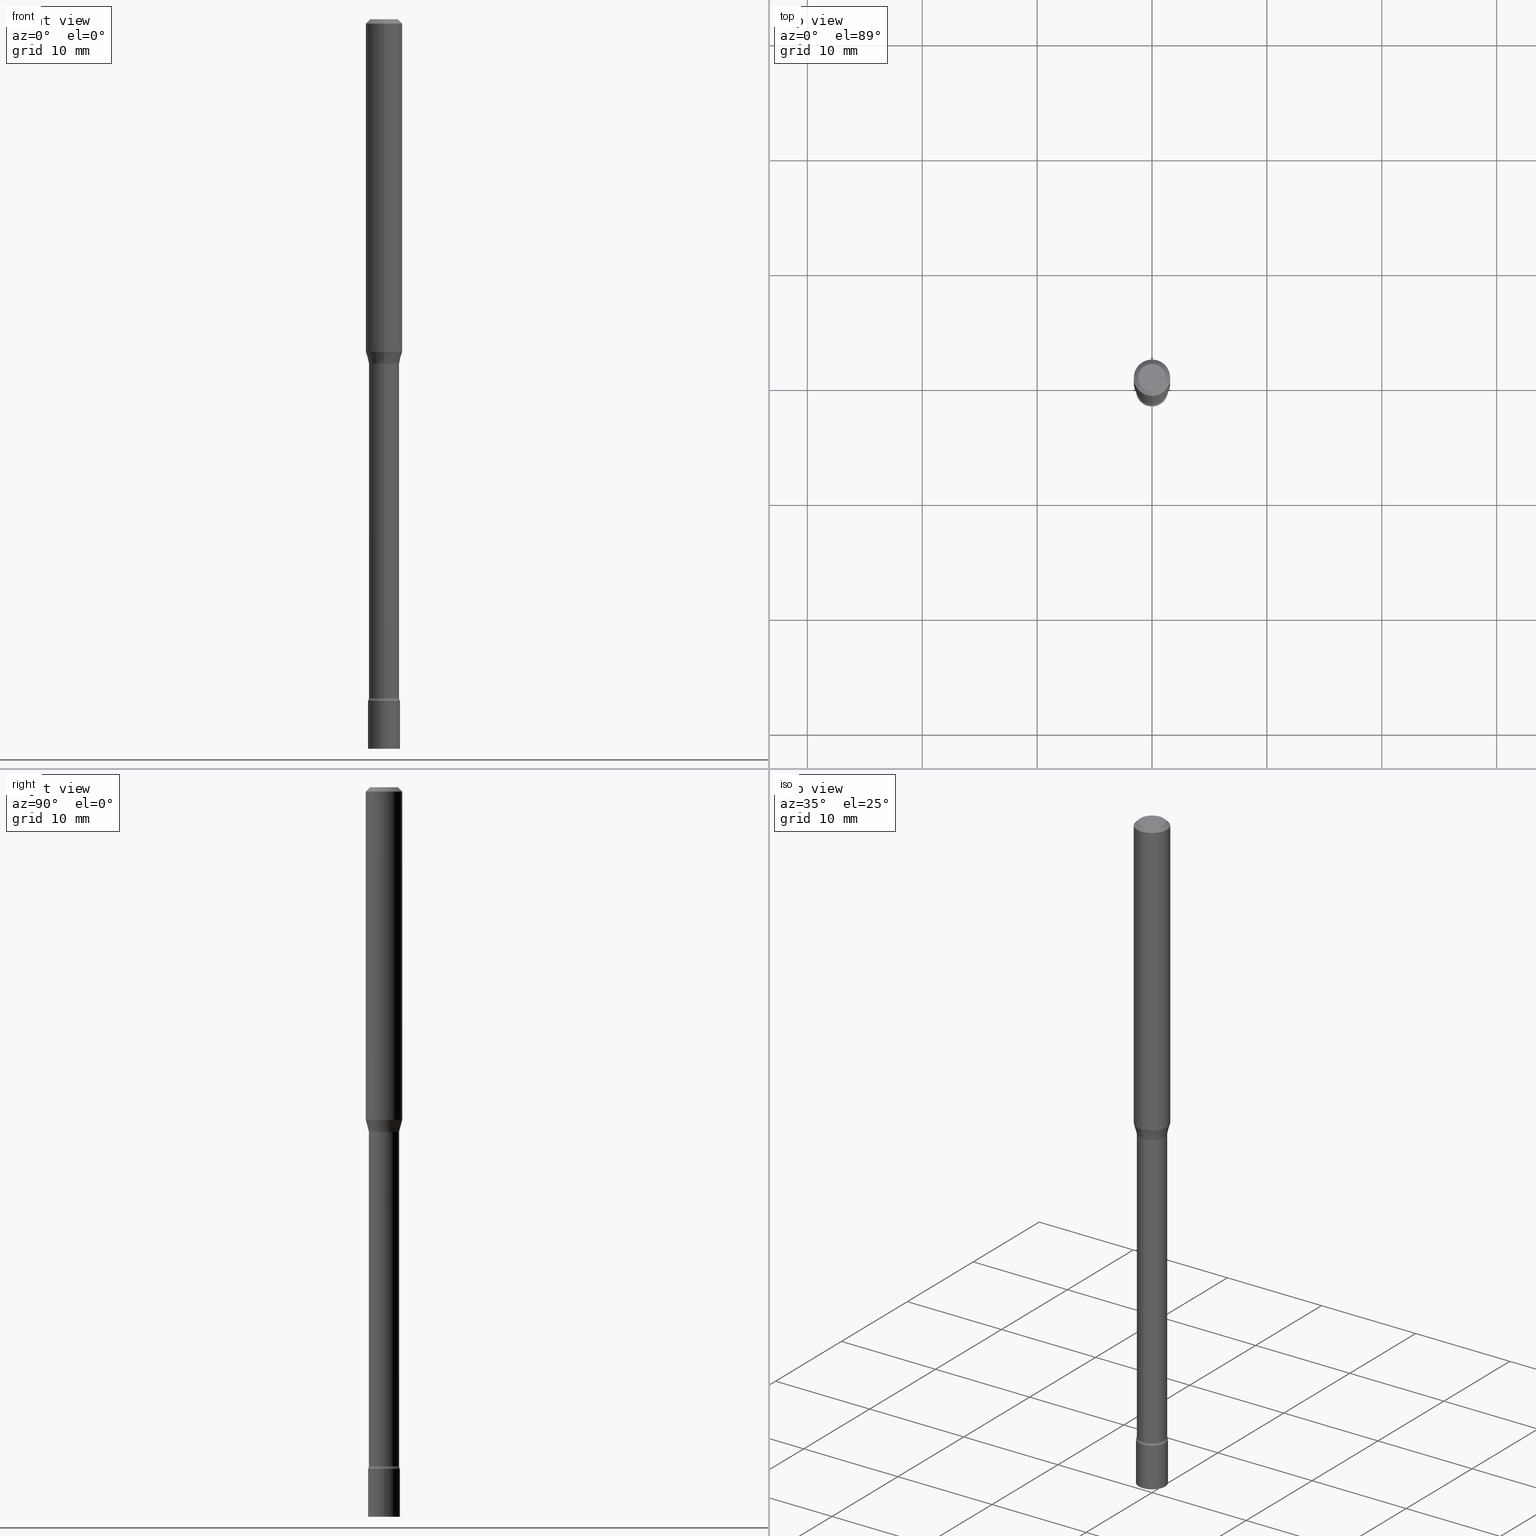
[diagram: canonical four-view strip — front | top / right | iso, engineering-drawing reading convention]
A machine part, canonical four-view strip (front | top / right | iso — engineering-drawing reading convention). The complete STEP part file that produces these views, byte-faithful:
ISO-10303-21;
HEADER;
FILE_DESCRIPTION (( 'STEP AP203' ),
    '1' );
FILE_NAME ('03613.STEP',
    '2024-03-08T22:07:00',
    ( '' ),
    ( '' ),
    'SwSTEP 2.0',
    'SolidWorks 2023',
    '' );
FILE_SCHEMA (( 'CONFIG_CONTROL_DESIGN' ));
ENDSEC;

DATA;
#1 = CARTESIAN_POINT ( 'NONE',  ( -4.364351673553916201E-16, -0.06250000000000000000, 2.182278962925272521E-16 ) ) ;
#2 = CC_DESIGN_APPROVAL ( #98, ( #320 ) ) ;
#3 = LINE ( 'NONE', #360, #441 ) ;
#4 = ORIENTED_EDGE ( 'NONE', *, *, #458, .F. ) ;
#5 = DIRECTION ( 'NONE',  ( 6.982962677686265922E-15, 1.000000000000000000, -3.483106191921935554E-15 ) ) ;
#6 = FACE_OUTER_BOUND ( 'NONE', #64, .T. ) ;
#7 = ADVANCED_FACE ( 'NONE', ( #298 ), #105, .T. ) ;
#8 = DIRECTION ( 'NONE',  ( -2.445468806185136597E-29, 3.491481338843145583E-15, 1.000000000000000000 ) ) ;
#9 = ADVANCED_FACE ( 'NONE', ( #376 ), #454, .T. ) ;
#10 = FACE_OUTER_BOUND ( 'NONE', #516, .T. ) ;
#11 = DIRECTION ( 'NONE',  ( -2.445353586017981575E-29, 3.491646340680436033E-15, 1.000000000000000000 ) ) ;
#12 =( NAMED_UNIT ( * ) SI_UNIT ( $, .STERADIAN. ) SOLID_ANGLE_UNIT ( ) );
#13 = AXIS2_PLACEMENT_3D ( 'NONE', #311, #11, #37 ) ;
#14 = CLOSED_SHELL ( 'NONE', ( #510, #176, #36, #241 ) ) ;
#15 = DIRECTION ( 'NONE',  ( -2.445353586017981575E-29, 3.491646340680436033E-15, 1.000000000000000000 ) ) ;
#16 = EDGE_CURVE ( 'NONE', #448, #474, #126, .T. ) ;
#17 = FACE_OUTER_BOUND ( 'NONE', #419, .T. ) ;
#18 = CARTESIAN_POINT ( 'NONE',  ( 5.709900623351987621E-29, -8.152994205488819247E-15, -2.334999999999999964 ) ) ;
#19 = CARTESIAN_POINT ( 'NONE',  ( 4.739320047520446740E-16, 0.06669999999999201568, -2.325613307291702903 ) ) ;
#20 = FACE_OUTER_BOUND ( 'NONE', #261, .T. ) ;
#21 = AXIS2_PLACEMENT_3D ( 'NONE', #307, #374, #497 ) ;
#22 = AXIS2_PLACEMENT_3D ( 'NONE', #435, #121, #227 ) ;
#23 = EDGE_CURVE ( 'NONE', #100, #318, #90, .T. ) ;
#24 = DIRECTION ( 'NONE',  ( 6.982962677686265922E-15, 1.000000000000000000, -3.491646340680436427E-15 ) ) ;
#25 = APPROVAL_DATE_TIME ( #341, #167 ) ;
#26 = VERTEX_POINT ( 'NONE', #134 ) ;
#27 = PERSON_AND_ORGANIZATION_ROLE ( 'design_supplier' ) ;
#28 = ORIENTED_EDGE ( 'NONE', *, *, #274, .T. ) ;
#29 = ADVANCED_FACE ( 'NONE', ( #213 ), #412, .T. ) ;
#30 = PERSON_AND_ORGANIZATION ( #378, #102 ) ;
#31 = ORIENTED_EDGE ( 'NONE', *, *, #426, .T. ) ;
#32 = CALENDAR_DATE ( 2024, 8, 3 ) ;
#33 = ORIENTED_EDGE ( 'NONE', *, *, #112, .T. ) ;
#34 = CIRCLE ( 'NONE', #439, 0.05221111260566397433 ) ;
#35 = AXIS2_PLACEMENT_3D ( 'NONE', #132, #170, #61 ) ;
#36 = ADVANCED_FACE ( 'NONE', ( #20 ), #290, .T. ) ;
#37 = DIRECTION ( 'NONE',  ( -6.982962677686265922E-15, -1.000000000000000000, 3.483106191921935554E-15 ) ) ;
#38 = DIRECTION ( 'NONE',  ( -2.445353586017981575E-29, 3.491646340680436033E-15, 1.000000000000000000 ) ) ;
#39 = FACE_OUTER_BOUND ( 'NONE', #505, .T. ) ;
#40 = ORIENTED_EDGE ( 'NONE', *, *, #209, .T. ) ;
#41 = LINE ( 'NONE', #198, #174 ) ;
#42 = ADVANCED_FACE ( 'NONE', ( #138 ), #242, .T. ) ;
#43 = AXIS2_PLACEMENT_3D ( 'NONE', #446, #405, #5 ) ;
#44 = DIRECTION ( 'NONE',  ( -2.445468806185136597E-29, 3.491481338843145583E-15, 1.000000000000000000 ) ) ;
#45 = VECTOR ( 'NONE', #211, 39.37007874015748143 ) ;
#46 = DIRECTION ( 'NONE',  ( 1.000000000000000000, -6.982962677686265922E-15, 4.876176775795935793E-29 ) ) ;
#47 = MANIFOLD_SOLID_BREP ( 'Body-Move/Copy2[1]', #14 ) ;
#48 = FACE_OUTER_BOUND ( 'NONE', #221, .T. ) ;
#49 = CARTESIAN_POINT ( 'NONE',  ( 4.440892098500906207E-16, 0.06249999999999993755, -0.01500000000000024751 ) ) ;
#50 = CARTESIAN_POINT ( 'NONE',  ( 4.075357388645952499E-16, 0.05221111260565985956, -1.178092501787273205 ) ) ;
#51 = ORIENTED_EDGE ( 'NONE', *, *, #161, .F. ) ;
#52 = AXIS2_PLACEMENT_3D ( 'NONE', #310, #155, #355 ) ;
#53 = FACE_OUTER_BOUND ( 'NONE', #163, .T. ) ;
#54 = AXIS2_PLACEMENT_3D ( 'NONE', #171, #331, #501 ) ;
#55 = DIRECTION ( 'NONE',  ( -1.807323732225323828E-15, -0.2588190451025172978, 0.9659258262890690894 ) ) ;
#56 = DIRECTION ( 'NONE',  ( 1.839019923739594004E-15, 0.2588190451025240701, 0.9659258262890673130 ) ) ;
#57 = PERSON_AND_ORGANIZATION_ROLE ( 'design_owner' ) ;
#58 = MANIFOLD_SOLID_BREP ( 'Body-Move/Copy2[2]', #152 ) ;
#59 = CARTESIAN_POINT ( 'NONE',  ( 2.880852723906403734E-29, -4.113482372848592017E-15, -1.178092501787272983 ) ) ;
#60 = DIRECTION ( 'NONE',  ( -2.445353586017981575E-29, 3.491646340680436033E-15, 1.000000000000000000 ) ) ;
#61 = DIRECTION ( 'NONE',  ( -6.982962677686265922E-15, -1.000000000000000000, 4.370956789862821150E-15 ) ) ;
#62 = AXIS2_PLACEMENT_3D ( 'NONE', #283, #370, #166 ) ;
#63 = CIRCLE ( 'NONE', #52, 0.05170000000000000984 ) ;
#64 = EDGE_LOOP ( 'NONE', ( #80, #366 ) ) ;
#65 = DIRECTION ( 'NONE',  ( -2.445353586017981575E-29, 3.491646340680436033E-15, 1.000000000000000000 ) ) ;
#66 = ORIENTED_EDGE ( 'NONE', *, *, #464, .T. ) ;
#67 = CARTESIAN_POINT ( 'NONE',  ( 4.440892098500903249E-16, 0.06249999999999600320, -1.139693851278256398 ) ) ;
#68 = APPROVAL_ROLE ( '' ) ;
#69 = ORIENTED_EDGE ( 'NONE', *, *, #137, .T. ) ;
#70 = DATE_TIME_ROLE ( 'creation_date' ) ;
#71 = EDGE_CURVE ( 'NONE', #296, #239, #496, .T. ) ;
#72 = ORIENTED_EDGE ( 'NONE', *, *, #79, .T. ) ;
#73 = AXIS2_PLACEMENT_3D ( 'NONE', #272, #475, #115 ) ;
#74 = PRODUCT ( '03613', '03613', '', ( #91 ) ) ;
#75 = VECTOR ( 'NONE', #56, 39.37007874015748854 ) ;
#76 = DIRECTION ( 'NONE',  ( -2.445353586017981575E-29, 3.491646340680436427E-15, 1.000000000000000000 ) ) ;
#77 = DIRECTION ( 'NONE',  ( -2.445353586017981575E-29, 3.491646340680436033E-15, 1.000000000000000000 ) ) ;
#78 = CARTESIAN_POINT ( 'NONE',  ( -3.773273898774340269E-16, -0.04749999999999999362, 1.369471278417229935E-16 ) ) ;
#79 = EDGE_CURVE ( 'NONE', #461, #474, #136, .T. ) ;
#80 = ORIENTED_EDGE ( 'NONE', *, *, #203, .F. ) ;
#81 = DIRECTION ( 'NONE',  ( -2.445353586017981575E-29, 3.491646340680436033E-15, 1.000000000000000000 ) ) ;
#82 = AXIS2_PLACEMENT_3D ( 'NONE', #420, #277, #482 ) ;
#83 = APPROVAL_PERSON_ORGANIZATION ( #327, #98, #499 ) ;
#84 = CARTESIAN_POINT ( 'NONE',  ( -4.364351673553912750E-16, -0.06250000000000005551, -0.01499999999999981209 ) ) ;
#85 = AXIS2_PLACEMENT_3D ( 'NONE', #193, #397, #160 ) ;
#86 =( CONVERSION_BASED_UNIT ( 'INCH', #443 ) LENGTH_UNIT ( ) NAMED_UNIT ( #369 ) );
#87 = EDGE_LOOP ( 'NONE', ( #222, #342, #444, #111 ) ) ;
#88 = DIRECTION ( 'NONE',  ( -2.445353586017981575E-29, 3.491646340680436033E-15, 1.000000000000000000 ) ) ;
#89 = ORIENTED_EDGE ( 'NONE', *, *, #425, .T. ) ;
#90 = LINE ( 'NONE', #498, #75 ) ;
#91 = MECHANICAL_CONTEXT ( 'NONE', #368, 'mechanical' ) ;
#92 = LOCAL_TIME ( 17, 7, 0.000000000000000000, #182 ) ;
#93 = CARTESIAN_POINT ( 'NONE',  ( 0.000000000000000000, 0.000000000000000000, 0.000000000000000000 ) ) ;
#94 = CARTESIAN_POINT ( 'NONE',  ( -3.645882506857976514E-16, -0.05221111260566808909, -1.178092501787272983 ) ) ;
#95 = CARTESIAN_POINT ( 'NONE',  ( 6.113672015462842613E-29, -8.728703347107864943E-15, -2.500000000000000000 ) ) ;
#96 = DIRECTION ( 'NONE',  ( -6.982962677686265922E-15, -1.000000000000000000, 3.491646340680436033E-15 ) ) ;
#97 = DIRECTION ( 'NONE',  ( -2.445353586017981575E-29, 3.491646340680436033E-15, 1.000000000000000000 ) ) ;
#98 = APPROVAL ( #373, 'UNSPECIFIED' ) ;
#99 = DIRECTION ( 'NONE',  ( -2.445468806185136597E-29, 3.491481338843145583E-15, 1.000000000000000000 ) ) ;
#100 = VERTEX_POINT ( 'NONE', #50 ) ;
#101 = TOROIDAL_SURFACE ( 'NONE', #279, 0.06670000000000013418, 0.01500000000000008965 ) ;
#102 = ORGANIZATION ( 'UNSPECIFIED', 'UNSPECIFIED', '' ) ;
#103 = EDGE_LOOP ( 'NONE', ( #234, #66, #51, #207 ) ) ;
#104 = PERSON_AND_ORGANIZATION ( #378, #102 ) ;
#105 = CYLINDRICAL_SURFACE ( 'NONE', #400, 0.05170000000000002371 ) ;
#106 = COORDINATED_UNIVERSAL_TIME_OFFSET ( 5, 0, .BEHIND. ) ;
#107 = ORIENTED_EDGE ( 'NONE', *, *, #483, .F. ) ;
#108 = AXIS2_PLACEMENT_3D ( 'NONE', #240, #396, #306 ) ;
#110 = TOROIDAL_SURFACE ( 'NONE', #62, 0.06669999999999999540, 0.01499999999999999424 ) ;
#109 = SHAPE_DEFINITION_REPRESENTATION ( #423, #470 ) ;
#111 = ORIENTED_EDGE ( 'NONE', *, *, #389, .F. ) ;
#112 = EDGE_CURVE ( 'NONE', #387, #265, #471, .T. ) ;
#113 = ADVANCED_FACE ( 'NONE', ( #164 ), #259, .T. ) ;
#114 = ORIENTED_EDGE ( 'NONE', *, *, #79, .F. ) ;
#115 = DIRECTION ( 'NONE',  ( 7.105427357600997914E-15, 1.000000000000000000, 0.000000000000000000 ) ) ;
#116 = ORIENTED_EDGE ( 'NONE', *, *, #252, .F. ) ;
#117 = CC_DESIGN_APPROVAL ( #362, ( #199 ) ) ;
#118 = ADVANCED_FACE ( 'NONE', ( #287 ), #363, .T. ) ;
#119 = CIRCLE ( 'NONE', #477, 0.05170000000000000984 ) ;
#120 = PLANE ( 'NONE',  #22 ) ;
#121 = DIRECTION ( 'NONE',  ( -2.445353586017981014E-29, 3.491646340680436427E-15, 1.000000000000000000 ) ) ;
#122 = CARTESIAN_POINT ( 'NONE',  ( 5.710169662442294357E-29, -8.152608926198745099E-15, -2.334999999999999964 ) ) ;
#123 = FACE_OUTER_BOUND ( 'NONE', #281, .T. ) ;
#124 = CIRCLE ( 'NONE', #349, 0.05221111260566397433 ) ;
#125 = DIRECTION ( 'NONE',  ( 1.000000000000000000, -6.982962677686262766E-15, 0.000000000000000000 ) ) ;
#126 = CIRCLE ( 'NONE', #488, 0.05500000000000000028 ) ;
#127 = CC_DESIGN_PERSON_AND_ORGANIZATION_ASSIGNMENT ( #145, #462, ( #199 ) ) ;
#128 = VERTEX_POINT ( 'NONE', #407 ) ;
#129 = DIRECTION ( 'NONE',  ( -6.982962677686266711E-15, -1.000000000000000000, 2.616155696869698836E-15 ) ) ;
#130 = ORIENTED_EDGE ( 'NONE', *, *, #426, .F. ) ;
#131 = CARTESIAN_POINT ( 'NONE',  ( 3.668030379026979334E-31, -5.237469511020664798E-17, -0.01500000000000003067 ) ) ;
#132 = CARTESIAN_POINT ( 'NONE',  ( 2.786954446185927741E-29, -3.979407865311716118E-15, -1.139693851278256176 ) ) ;
#133 = DIRECTION ( 'NONE',  ( -6.982962677686267499E-15, -1.000000000000000000, 0.000000000000000000 ) ) ;
#134 = CARTESIAN_POINT ( 'NONE',  ( 3.790745495280708501E-16, 0.05169999999999193296, -2.325613307291702903 ) ) ;
#135 = COORDINATED_UNIVERSAL_TIME_OFFSET ( 5, 0, .BEHIND. ) ;
#136 = CIRCLE ( 'NONE', #188, 0.01500000000000008792 ) ;
#137 = EDGE_CURVE ( 'NONE', #318, #473, #447, .T. ) ;
#138 = FACE_OUTER_BOUND ( 'NONE', #337, .T. ) ;
#139 = DIRECTION ( 'NONE',  ( 1.000000000000000000, 0.000000000000000000, 0.000000000000000000 ) ) ;
#140 = DATE_TIME_ROLE ( 'classification_date' ) ;
#141 = ORIENTED_EDGE ( 'NONE', *, *, #274, .F. ) ;
#142 = ORIENTED_EDGE ( 'NONE', *, *, #23, .T. ) ;
#143 = VECTOR ( 'NONE', #249, 39.37007874015748143 ) ;
#144 = CC_DESIGN_SECURITY_CLASSIFICATION ( #178, ( #199 ) ) ;
#145 = PERSON_AND_ORGANIZATION ( #378, #102 ) ;
#146 = VERTEX_POINT ( 'NONE', #371 ) ;
#147 = EDGE_LOOP ( 'NONE', ( #262, #28 ) ) ;
#148 = DATE_AND_TIME ( #231, #92 ) ;
#149 = ORIENTED_EDGE ( 'NONE', *, *, #276, .F. ) ;
#150 = ADVANCED_FACE ( 'NONE', ( #17 ), #486, .T. ) ;
#151 = AXIS2_PLACEMENT_3D ( 'NONE', #432, #237, #393 ) ;
#152 = CLOSED_SHELL ( 'NONE', ( #350, #7, #183, #150, #29, #113, #118, #9, #42, #503, #375, #292, #228, #181 ) ) ;
#153 = CIRCLE ( 'NONE', #347, 0.05500000000000000028 ) ;
#154 = VERTEX_POINT ( 'NONE', #491 ) ;
#155 = DIRECTION ( 'NONE',  ( -2.445353586017981575E-29, 3.491646340680436033E-15, 1.000000000000000000 ) ) ;
#156 = CARTESIAN_POINT ( 'NONE',  ( 6.113672015462842613E-29, -8.728703347107864943E-15, -2.500000000000000000 ) ) ;
#157 = ORIENTED_EDGE ( 'NONE', *, *, #458, .T. ) ;
#158 = DIRECTION ( 'NONE',  ( -2.445353586017981575E-29, 3.491646340680436033E-15, 1.000000000000000000 ) ) ;
#159 = CARTESIAN_POINT ( 'NONE',  ( 2.880852723906403734E-29, -4.113482372848592017E-15, -1.178092501787272983 ) ) ;
#160 = DIRECTION ( 'NONE',  ( -6.982962677686265922E-15, -1.000000000000000000, 5.284038672464720181E-15 ) ) ;
#161 = EDGE_CURVE ( 'NONE', #154, #430, #421, .T. ) ;
#162 = AXIS2_PLACEMENT_3D ( 'NONE', #19, #289, #453 ) ;
#163 = EDGE_LOOP ( 'NONE', ( #130, #4, #416, #196 ) ) ;
#164 = FACE_OUTER_BOUND ( 'NONE', #518, .T. ) ;
#165 = CARTESIAN_POINT ( 'NONE',  ( 0.000000000000000000, 0.000000000000000000, 0.000000000000000000 ) ) ;
#166 = DIRECTION ( 'NONE',  ( -6.982962677686265133E-15, -1.000000000000000000, 3.491646340680435639E-15 ) ) ;
#167 = APPROVAL ( #469, 'UNSPECIFIED' ) ;
#168 = DIRECTION ( 'NONE',  ( -2.445353586017981575E-29, 3.491646340680436033E-15, 1.000000000000000000 ) ) ;
#169 = DIRECTION ( 'NONE',  ( -2.445353586017981575E-29, 3.491646340680436033E-15, 1.000000000000000000 ) ) ;
#170 = DIRECTION ( 'NONE',  ( -2.445353586017981575E-29, 3.491646340680436033E-15, 1.000000000000000000 ) ) ;
#171 = CARTESIAN_POINT ( 'NONE',  ( 0.000000000000000000, 0.000000000000000000, 0.000000000000000000 ) ) ;
#172 = CARTESIAN_POINT ( 'NONE',  ( -4.657636106016450234E-16, -0.06670000000000413098, -1.181974787463810683 ) ) ;
#173 = CIRCLE ( 'NONE', #13, 0.06250000000000000000 ) ;
#174 = VECTOR ( 'NONE', #359, 39.37007874015748143 ) ;
#175 = EDGE_LOOP ( 'NONE', ( #285, #493, #392, #177 ) ) ;
#176 = ADVANCED_FACE ( 'NONE', ( #487 ), #437, .T. ) ;
#177 = ORIENTED_EDGE ( 'NONE', *, *, #401, .F. ) ;
#178 = SECURITY_CLASSIFICATION ( '', '', #179 ) ;
#179 = SECURITY_CLASSIFICATION_LEVEL ( 'unclassified' ) ;
#180 = VERTEX_POINT ( 'NONE', #201 ) ;
#181 = ADVANCED_FACE ( 'NONE', ( #53 ), #110, .F. ) ;
#182 = COORDINATED_UNIVERSAL_TIME_OFFSET ( 5, 0, .BEHIND. ) ;
#183 = ADVANCED_FACE ( 'NONE', ( #10 ), #101, .F. ) ;
#184 = ORIENTED_EDGE ( 'NONE', *, *, #194, .T. ) ;
#185 = ORIENTED_EDGE ( 'NONE', *, *, #23, .F. ) ;
#186 = COORDINATED_UNIVERSAL_TIME_OFFSET ( 5, 0, .BEHIND. ) ;
#187 = ORIENTED_EDGE ( 'NONE', *, *, #236, .T. ) ;
#188 = AXIS2_PLACEMENT_3D ( 'NONE', #403, #325, #133 ) ;
#189 = ORIENTED_EDGE ( 'NONE', *, *, #483, .T. ) ;
#190 = AXIS2_PLACEMENT_3D ( 'NONE', #408, #169, #96 ) ;
#191 = DIRECTION ( 'NONE',  ( -2.445353586017981575E-29, 3.491646340680436033E-15, 1.000000000000000000 ) ) ;
#192 = ORIENTED_EDGE ( 'NONE', *, *, #410, .F. ) ;
#193 = CARTESIAN_POINT ( 'NONE',  ( 5.686946840676904514E-29, -8.120219194242801000E-15, -2.325613307291702903 ) ) ;
#194 = EDGE_CURVE ( 'NONE', #26, #448, #500, .T. ) ;
#195 = DIRECTION ( 'NONE',  ( -6.982962677686265922E-15, -1.000000000000000000, 4.370956789862821150E-15 ) ) ;
#196 = ORIENTED_EDGE ( 'NONE', *, *, #220, .T. ) ;
#197 = AXIS2_PLACEMENT_3D ( 'NONE', #122, #275, #210 ) ;
#198 = CARTESIAN_POINT ( 'NONE',  ( 4.364351673553919652E-16, 0.06249999999999995143, -0.01500000000000024751 ) ) ;
#199 = PRODUCT_DEFINITION_FORMATION_WITH_SPECIFIED_SOURCE ( 'ANY', '', #74, .NOT_KNOWN. ) ;
#200 = CARTESIAN_POINT ( 'NONE',  ( 3.673505943879719153E-16, 0.05170000000000002371, -1.805181158131786193E-16 ) ) ;
#201 = CARTESIAN_POINT ( 'NONE',  ( 0.05500000000000000028, -9.112766294380608350E-15, -2.500000000000000000 ) ) ;
#202 = CARTESIAN_POINT ( 'NONE',  ( 2.890482472440055862E-29, -4.126842913412988651E-15, -1.181974787463810905 ) ) ;
#203 = EDGE_CURVE ( 'NONE', #180, #146, #153, .T. ) ;
#204 = DIRECTION ( 'NONE',  ( -2.445468806185136877E-29, 3.491481338843145188E-15, 1.000000000000000000 ) ) ;
#205 = CARTESIAN_POINT ( 'NONE',  ( 7.068557010112939346E-46, -1.009297852031383305E-31, -2.890607334059771537E-17 ) ) ;
#206 = AXIS2_PLACEMENT_3D ( 'NONE', #131, #253, #247 ) ;
#207 = ORIENTED_EDGE ( 'NONE', *, *, #333, .F. ) ;
#208 = CARTESIAN_POINT ( 'NONE',  ( 5.709900623351987621E-29, -8.152994205488819247E-15, -2.334999999999999964 ) ) ;
#209 = EDGE_CURVE ( 'NONE', #100, #296, #34, .T. ) ;
#210 = DIRECTION ( 'NONE',  ( 1.000000000000000000, -6.982962677686262766E-15, 0.000000000000000000 ) ) ;
#211 = DIRECTION ( 'NONE',  ( -2.445353586017981575E-29, 3.491646340680436427E-15, 1.000000000000000000 ) ) ;
#212 = CARTESIAN_POINT ( 'NONE',  ( 4.440892098500625669E-16, 0.06250000000000000000, -2.182278962925272521E-16 ) ) ;
#213 = FACE_OUTER_BOUND ( 'NONE', #270, .T. ) ;
#214 = APPLICATION_PROTOCOL_DEFINITION ( 'international standard', 'config_control_design', 1994, #476 ) ;
#215 = DIRECTION ( 'NONE',  ( -6.982962677686265922E-15, -1.000000000000000000, 3.491646340680436033E-15 ) ) ;
#216 = DIRECTION ( 'NONE',  ( -6.982962677686265922E-15, -1.000000000000000000, 3.491646340680436033E-15 ) ) ;
#217 = CARTESIAN_POINT ( 'NONE',  ( 0.000000000000000000, 0.000000000000000000, 0.000000000000000000 ) ) ;
#218 = CIRCLE ( 'NONE', #514, 0.06250000000000000000 ) ;
#219 = AXIS2_PLACEMENT_3D ( 'NONE', #315, #191, #517 ) ;
#220 = EDGE_CURVE ( 'NONE', #128, #513, #63, .T. ) ;
#221 = EDGE_LOOP ( 'NONE', ( #344, #230 ) ) ;
#222 = ORIENTED_EDGE ( 'NONE', *, *, #312, .T. ) ;
#223 = APPROVAL_DATE_TIME ( #509, #98 ) ;
#224 = ORIENTED_EDGE ( 'NONE', *, *, #333, .T. ) ;
#225 = AXIS2_PLACEMENT_3D ( 'NONE', #455, #256, #24 ) ;
#226 = EDGE_CURVE ( 'NONE', #239, #316, #479, .T. ) ;
#227 = DIRECTION ( 'NONE',  ( -6.982962677686265922E-15, -1.000000000000000000, 3.491646340680436427E-15 ) ) ;
#228 = ADVANCED_FACE ( 'NONE', ( #324 ), #452, .T. ) ;
#229 = CALENDAR_DATE ( 2024, 8, 3 ) ;
#230 = ORIENTED_EDGE ( 'NONE', *, *, #16, .F. ) ;
#231 = CALENDAR_DATE ( 2024, 8, 3 ) ;
#232 = ORIENTED_EDGE ( 'NONE', *, *, #401, .T. ) ;
#233 = UNCERTAINTY_MEASURE_WITH_UNIT (LENGTH_MEASURE( 1.000000000000000082E-05 ), #86, 'distance_accuracy_value', 'NONE');
#234 = ORIENTED_EDGE ( 'NONE', *, *, #203, .T. ) ;
#235 = AXIS2_PLACEMENT_3D ( 'NONE', #202, #158, #305 ) ;
#236 = EDGE_CURVE ( 'NONE', #265, #473, #41, .T. ) ;
#237 = DIRECTION ( 'NONE',  ( -2.445353586017981575E-29, 3.491646340680436033E-15, 1.000000000000000000 ) ) ;
#238 = CARTESIAN_POINT ( 'NONE',  ( 3.840629472727447874E-16, 0.04749999999999999362, -1.947592745229184119E-16 ) ) ;
#239 = VERTEX_POINT ( 'NONE', #314 ) ;
#240 = CARTESIAN_POINT ( 'NONE',  ( 5.687214798230907854E-29, -8.119835463774270932E-15, -2.325613307291702903 ) ) ;
#241 = ADVANCED_FACE ( 'NONE', ( #6 ), #481, .T. ) ;
#242 = CONICAL_SURFACE ( 'NONE', #206, 0.06250000000000000000, 0.7853981633974483900 ) ;
#243 = EDGE_CURVE ( 'NONE', #146, #180, #515, .T. ) ;
#244 = CIRCLE ( 'NONE', #82, 0.05170000000000005147 ) ;
#245 = DIRECTION ( 'NONE',  ( -2.445468806185136877E-29, 3.491481338843145188E-15, 1.000000000000000000 ) ) ;
#246 = DESIGN_CONTEXT ( 'detailed design', #476, 'design' ) ;
#247 = DIRECTION ( 'NONE',  ( 6.982962677686265922E-15, 1.000000000000000000, -3.483106191921935554E-15 ) ) ;
#248 = DIRECTION ( 'NONE',  ( 0.000000000000000000, 0.000000000000000000, 1.000000000000000000 ) ) ;
#249 = DIRECTION ( 'NONE',  ( -2.445353586017981575E-29, 3.491646340680436427E-15, 1.000000000000000000 ) ) ;
#250 = ORIENTED_EDGE ( 'NONE', *, *, #71, .F. ) ;
#251 = DIRECTION ( 'NONE',  ( -2.445353586017981575E-29, 3.491646340680436033E-15, 1.000000000000000000 ) ) ;
#252 = EDGE_CURVE ( 'NONE', #387, #316, #485, .T. ) ;
#253 = DIRECTION ( 'NONE',  ( 2.445353586017981575E-29, -3.491646340680436033E-15, -1.000000000000000000 ) ) ;
#254 = DIRECTION ( 'NONE',  ( -2.445468806185136597E-29, 3.491481338843145583E-15, 1.000000000000000000 ) ) ;
#255 = DIRECTION ( 'NONE',  ( -6.982962677686265922E-15, -1.000000000000000000, 3.491646340680436033E-15 ) ) ;
#256 = DIRECTION ( 'NONE',  ( 2.445353586017981014E-29, -3.491646340680436427E-15, -1.000000000000000000 ) ) ;
#257 =( LENGTH_UNIT ( ) NAMED_UNIT ( * ) SI_UNIT ( $, .METRE. ) );
#258 = PRODUCT_RELATED_PRODUCT_CATEGORY ( 'detail', '', ( #74 ) ) ;
#259 = CONICAL_SURFACE ( 'NONE', #268, 0.05221111260566397433, 0.2617993877991494078 ) ;
#260 = LOCAL_TIME ( 17, 7, 0.000000000000000000, #186 ) ;
#261 = EDGE_LOOP ( 'NONE', ( #308, #508, #224, #141 ) ) ;
#262 = ORIENTED_EDGE ( 'NONE', *, *, #161, .T. ) ;
#263 = COORDINATED_UNIVERSAL_TIME_OFFSET ( 5, 0, .BEHIND. ) ;
#264 = CC_DESIGN_DATE_AND_TIME_ASSIGNMENT ( #382, #140, ( #178 ) ) ;
#265 = VERTEX_POINT ( 'NONE', #238 ) ;
#266 = AXIS2_PLACEMENT_3D ( 'NONE', #156, #8, #125 ) ;
#267 = ORIENTED_EDGE ( 'NONE', *, *, #209, .F. ) ;
#268 = AXIS2_PLACEMENT_3D ( 'NONE', #492, #168, #129 ) ;
#269 = CARTESIAN_POINT ( 'NONE',  ( -0.05500000000000000028, -8.049857631985250360E-15, -2.334999999999999964 ) ) ;
#270 = EDGE_LOOP ( 'NONE', ( #428, #69, #381, #322 ) ) ;
#271 = CIRCLE ( 'NONE', #424, 0.01499999999999998557 ) ;
#272 = CARTESIAN_POINT ( 'NONE',  ( 4.739320047520156833E-16, 0.06669999999999587370, -1.181974787463811127 ) ) ;
#273 = CARTESIAN_POINT ( 'NONE',  ( 2.786954446185927741E-29, -3.979407865311716118E-15, -1.139693851278256176 ) ) ;
#274 = EDGE_CURVE ( 'NONE', #430, #154, #317, .T. ) ;
#275 = DIRECTION ( 'NONE',  ( -2.445468806185136597E-29, 3.491481338843145583E-15, 1.000000000000000000 ) ) ;
#276 = EDGE_CURVE ( 'NONE', #26, #513, #353, .T. ) ;
#277 = DIRECTION ( 'NONE',  ( -2.445353586017981575E-29, 3.491646340680436033E-15, 1.000000000000000000 ) ) ;
#278 = TOROIDAL_SURFACE ( 'NONE', #108, 0.06670000000000013418, 0.01500000000000008965 ) ;
#279 = AXIS2_PLACEMENT_3D ( 'NONE', #465, #472, #215 ) ;
#280 = CARTESIAN_POINT ( 'NONE',  ( 5.710169662442294357E-29, -8.152608926198745099E-15, -2.334999999999999964 ) ) ;
#281 = EDGE_LOOP ( 'NONE', ( #466, #489, #72, #418 ) ) ;
#282 = CARTESIAN_POINT ( 'NONE',  ( -3.840629472726879401E-16, -0.05500000000000821593, -2.334999999999999964 ) ) ;
#283 = CARTESIAN_POINT ( 'NONE',  ( 2.890482472440055862E-29, -4.126842913412988651E-15, -1.181974787463810905 ) ) ;
#284 = DIRECTION ( 'NONE',  ( -6.982962677686266711E-15, -1.000000000000000000, 2.616155696869698836E-15 ) ) ;
#285 = ORIENTED_EDGE ( 'NONE', *, *, #137, .F. ) ;
#286 = DIRECTION ( 'NONE',  ( -1.000000000000000000, 6.982962677686265922E-15, -4.883557194083112340E-29 ) ) ;
#287 = FACE_OUTER_BOUND ( 'NONE', #335, .T. ) ;
#288 = APPROVAL_PERSON_ORGANIZATION ( #297, #167, #300 ) ;
#289 = DIRECTION ( 'NONE',  ( 1.000000000000000000, -7.105427357601001070E-15, 4.926317529231800827E-29 ) ) ;
#290 = CYLINDRICAL_SURFACE ( 'NONE', #54, 0.05500000000000000028 ) ;
#291 = CALENDAR_DATE ( 2024, 8, 3 ) ;
#292 = ADVANCED_FACE ( 'NONE', ( #123 ), #278, .F. ) ;
#293 = ORIENTED_EDGE ( 'NONE', *, *, #389, .T. ) ;
#294 = TOROIDAL_SURFACE ( 'NONE', #235, 0.06669999999999999540, 0.01499999999999999424 ) ;
#295 = AXIS2_PLACEMENT_3D ( 'NONE', #165, #248, #139 ) ;
#296 = VERTEX_POINT ( 'NONE', #385 ) ;
#297 = PERSON_AND_ORGANIZATION ( #378, #102 ) ;
#298 = FACE_OUTER_BOUND ( 'NONE', #87, .T. ) ;
#299 = CARTESIAN_POINT ( 'NONE',  ( 0.000000000000000000, 0.000000000000000000, 0.000000000000000000 ) ) ;
#300 = APPROVAL_ROLE ( '' ) ;
#301 = CIRCLE ( 'NONE', #73, 0.01500000000000000291 ) ;
#302 = ORIENTED_EDGE ( 'NONE', *, *, #410, .T. ) ;
#303 = CIRCLE ( 'NONE', #85, 0.05170000000000005147 ) ;
#304 = ORIENTED_EDGE ( 'NONE', *, *, #16, .T. ) ;
#305 = DIRECTION ( 'NONE',  ( -6.982962677686265133E-15, -1.000000000000000000, 3.491646340680435639E-15 ) ) ;
#306 = DIRECTION ( 'NONE',  ( -6.982962677686265922E-15, -1.000000000000000000, 3.491646340680436033E-15 ) ) ;
#307 = CARTESIAN_POINT ( 'NONE',  ( 3.840629472728058255E-16, 0.05499999999999127809, -2.500000000000000000 ) ) ;
#308 = ORIENTED_EDGE ( 'NONE', *, *, #464, .F. ) ;
#309 = LOCAL_TIME ( 17, 7, 0.000000000000000000, #106 ) ;
#310 = CARTESIAN_POINT ( 'NONE',  ( 2.890346285107471227E-29, -4.127037941424550740E-15, -1.181974787463810683 ) ) ;
#311 = CARTESIAN_POINT ( 'NONE',  ( 3.668030379026979334E-31, -5.237469511020664798E-17, -0.01500000000000003067 ) ) ;
#312 = EDGE_CURVE ( 'NONE', #461, #26, #244, .T. ) ;
#313 = DIRECTION ( 'NONE',  ( -4.851104656540964275E-15, -0.7071067811865500152, -0.7071067811865450192 ) ) ;
#314 = CARTESIAN_POINT ( 'NONE',  ( -4.364351673553638128E-16, -0.06250000000000399680, -1.139693851278255732 ) ) ;
#315 = CARTESIAN_POINT ( 'NONE',  ( 3.668030379026979334E-31, -5.237469511020664798E-17, -0.01500000000000003067 ) ) ;
#316 = VERTEX_POINT ( 'NONE', #84 ) ;
#317 = CIRCLE ( 'NONE', #391, 0.05500000000000000028 ) ;
#318 = VERTEX_POINT ( 'NONE', #67 ) ;
#319 = DIRECTION ( 'NONE',  ( -6.982962677686270655E-15, -1.000000000000000000, 0.000000000000000000 ) ) ;
#320 = PRODUCT_DEFINITION ( 'UNKNOWN', '', #199, #246 ) ;
#321 = CARTESIAN_POINT ( 'NONE',  ( 2.880852723906403734E-29, -4.113482372848592017E-15, -1.178092501787272983 ) ) ;
#322 = ORIENTED_EDGE ( 'NONE', *, *, #226, .F. ) ;
#323 = CARTESIAN_POINT ( 'NONE',  ( -0.05500000000000000028, 3.907985046680551042E-16, -2.705414299640198362E-30 ) ) ;
#324 = FACE_OUTER_BOUND ( 'NONE', #404, .T. ) ;
#325 = DIRECTION ( 'NONE',  ( -1.000000000000000000, 6.982962677686265922E-15, -4.883557194083112340E-29 ) ) ;
#326 = DIRECTION ( 'NONE',  ( -6.982962677686266711E-15, -1.000000000000000000, 4.966996352116842287E-15 ) ) ;
#327 = PERSON_AND_ORGANIZATION ( #378, #102 ) ;
#328 = VECTOR ( 'NONE', #313, 39.37007874015748143 ) ;
#329 = LOCAL_TIME ( 17, 7, 0.000000000000000000, #135 ) ;
#330 = CC_DESIGN_DATE_AND_TIME_ASSIGNMENT ( #388, #70, ( #320 ) ) ;
#331 = DIRECTION ( 'NONE',  ( -2.445468806185136597E-29, 3.491481338843145583E-15, 1.000000000000000000 ) ) ;
#332 = DIRECTION ( 'NONE',  ( -6.982962677686266711E-15, -1.000000000000000000, 4.966996352116842287E-15 ) ) ;
#333 = EDGE_CURVE ( 'NONE', #180, #154, #480, .T. ) ;
#334 = DIRECTION ( 'NONE',  ( -2.445353586017981575E-29, 3.491646340680436033E-15, 1.000000000000000000 ) ) ;
#335 = EDGE_LOOP ( 'NONE', ( #185, #40, #348, #390 ) ) ;
#336 = APPROVAL_DATE_TIME ( #148, #362 ) ;
#337 = EDGE_LOOP ( 'NONE', ( #116, #463, #187, #232 ) ) ;
#338 = AXIS2_PLACEMENT_3D ( 'NONE', #217, #99, #361 ) ;
#339 = CIRCLE ( 'NONE', #440, 0.05500000000000000028 ) ;
#340 = VECTOR ( 'NONE', #55, 39.37007874015748854 ) ;
#341 = DATE_AND_TIME ( #229, #399 ) ;
#342 = ORIENTED_EDGE ( 'NONE', *, *, #276, .T. ) ;
#343 = PERSON_AND_ORGANIZATION_ROLE ( 'classification_officer' ) ;
#344 = ORIENTED_EDGE ( 'NONE', *, *, #467, .F. ) ;
#345 = APPROVAL_STATUS ( 'not_yet_approved' ) ;
#346 = CC_DESIGN_PERSON_AND_ORGANIZATION_ASSIGNMENT ( #30, #386, ( #320 ) ) ;
#347 = AXIS2_PLACEMENT_3D ( 'NONE', #95, #254, #411 ) ;
#348 = ORIENTED_EDGE ( 'NONE', *, *, #71, .T. ) ;
#349 = AXIS2_PLACEMENT_3D ( 'NONE', #159, #81, #436 ) ;
#350 = ADVANCED_FACE ( 'NONE', ( #39 ), #294, .F. ) ;
#351 = AXIS2_PLACEMENT_3D ( 'NONE', #205, #15, #365 ) ;
#352 = CARTESIAN_POINT ( 'NONE',  ( -4.287811248607203282E-16, -0.06250000000000005551, -0.01499999999999981209 ) ) ;
#353 = LINE ( 'NONE', #200, #415 ) ;
#354 = CC_DESIGN_PERSON_AND_ORGANIZATION_ASSIGNMENT ( #104, #343, ( #178 ) ) ;
#355 = DIRECTION ( 'NONE',  ( -6.982962677686264344E-15, -1.000000000000000000, 2.642019336232362457E-15 ) ) ;
#356 = CARTESIAN_POINT ( 'NONE',  ( 3.907985046681126417E-16, 0.05499999999999190953, -2.335000000000000409 ) ) ;
#357 = ORIENTED_EDGE ( 'NONE', *, *, #236, .F. ) ;
#358 = DIRECTION ( 'NONE',  ( -2.445353586017981575E-29, 3.491646340680436427E-15, 1.000000000000000000 ) ) ;
#359 = DIRECTION ( 'NONE',  ( 4.937700262164548042E-15, 0.7071067811865451302, -0.7071067811865499042 ) ) ;
#360 = CARTESIAN_POINT ( 'NONE',  ( -3.610191704363801021E-16, -0.05170000000000002371, 1.805181158131786193E-16 ) ) ;
#361 = DIRECTION ( 'NONE',  ( 1.000000000000000000, -6.982962677686266711E-15, 4.876176775795935793E-29 ) ) ;
#362 = APPROVAL ( #345, 'UNSPECIFIED' ) ;
#363 = CONICAL_SURFACE ( 'NONE', #506, 0.05221111260566397433, 0.2617993877991494078 ) ;
#364 = APPROVAL_PERSON_ORGANIZATION ( #422, #362, #68 ) ;
#365 = DIRECTION ( 'NONE',  ( -6.982962677686266711E-15, -1.000000000000000000, 3.491646340680436427E-15 ) ) ;
#366 = ORIENTED_EDGE ( 'NONE', *, *, #243, .F. ) ;
#367 = FACE_OUTER_BOUND ( 'NONE', #457, .T. ) ;
#368 = APPLICATION_CONTEXT ( 'configuration controlled 3d designs of mechanical parts and assemblies' ) ;
#369 = DIMENSIONAL_EXPONENTS ( 1.000000000000000000, 0.000000000000000000, 0.000000000000000000, 0.000000000000000000, 0.000000000000000000, 0.000000000000000000, 0.000000000000000000 ) ;
#370 = DIRECTION ( 'NONE',  ( -2.445353586017981575E-29, 3.491646340680436033E-15, 1.000000000000000000 ) ) ;
#371 = CARTESIAN_POINT ( 'NONE',  ( -0.05500000000000000028, -8.049857631985250360E-15, -2.500000000000000000 ) ) ;
#372 = CARTESIAN_POINT ( 'NONE',  ( 0.000000000000000000, 0.000000000000000000, 0.000000000000000000 ) ) ;
#373 = APPROVAL_STATUS ( 'not_yet_approved' ) ;
#374 = DIRECTION ( 'NONE',  ( 2.438088387897960049E-29, -3.491481338843145188E-15, -1.000000000000000000 ) ) ;
#375 = ADVANCED_FACE ( 'NONE', ( #48 ), #120, .F. ) ;
#376 = FACE_OUTER_BOUND ( 'NONE', #175, .T. ) ;
#377 = FACE_OUTER_BOUND ( 'NONE', #103, .T. ) ;
#378 = PERSON ( 'UNSPECIFIED', 'UNSPECIFIED', 'UNSPECIFIED', ('UNSPECIFIED'), ('UNSPECIFIED'), ('UNSPECIFIED') ) ;
#379 = CIRCLE ( 'NONE', #151, 0.04749999999999999362 ) ;
#380 = ORIENTED_EDGE ( 'NONE', *, *, #442, .F. ) ;
#381 = ORIENTED_EDGE ( 'NONE', *, *, #425, .F. ) ;
#382 = DATE_AND_TIME ( #32, #260 ) ;
#383 = CIRCLE ( 'NONE', #35, 0.06250000000000000000 ) ;
#384 = ORIENTED_EDGE ( 'NONE', *, *, #434, .T. ) ;
#385 = CARTESIAN_POINT ( 'NONE',  ( -3.645882506857976514E-16, -0.05221111260566808909, -1.178092501787272983 ) ) ;
#386 = PERSON_AND_ORGANIZATION_ROLE ( 'creator' ) ;
#387 = VERTEX_POINT ( 'NONE', #78 ) ;
#388 = DATE_AND_TIME ( #427, #309 ) ;
#389 = EDGE_CURVE ( 'NONE', #461, #128, #3, .T. ) ;
#390 = ORIENTED_EDGE ( 'NONE', *, *, #519, .F. ) ;
#391 = AXIS2_PLACEMENT_3D ( 'NONE', #520, #44, #438 ) ;
#392 = ORIENTED_EDGE ( 'NONE', *, *, #226, .T. ) ;
#393 = DIRECTION ( 'NONE',  ( -6.982962677686266711E-15, -1.000000000000000000, 3.491646340680436427E-15 ) ) ;
#394 = ORIENTED_EDGE ( 'NONE', *, *, #112, .F. ) ;
#395 = DIRECTION ( 'NONE',  ( -6.982962677686266711E-15, -1.000000000000000000, 2.616155696869698836E-15 ) ) ;
#396 = DIRECTION ( 'NONE',  ( -2.445353586017981575E-29, 3.491646340680436033E-15, 1.000000000000000000 ) ) ;
#397 = DIRECTION ( 'NONE',  ( -2.445353586017981575E-29, 3.491646340680436033E-15, 1.000000000000000000 ) ) ;
#398 = VECTOR ( 'NONE', #245, 39.37007874015748143 ) ;
#399 = LOCAL_TIME ( 17, 7, 0.000000000000000000, #263 ) ;
#400 = AXIS2_PLACEMENT_3D ( 'NONE', #299, #251, #255 ) ;
#401 = EDGE_CURVE ( 'NONE', #473, #316, #173, .T. ) ;
#402 = LINE ( 'NONE', #323, #406 ) ;
#403 = CARTESIAN_POINT ( 'NONE',  ( -4.657636106016180049E-16, -0.06670000000000825269, -2.325613307291702458 ) ) ;
#404 = EDGE_LOOP ( 'NONE', ( #149, #302, #293, #107 ) ) ;
#405 = DIRECTION ( 'NONE',  ( 2.445353586017981575E-29, -3.491646340680436033E-15, -1.000000000000000000 ) ) ;
#406 = VECTOR ( 'NONE', #204, 39.37007874015748143 ) ;
#407 = CARTESIAN_POINT ( 'NONE',  ( -3.610191704363511115E-16, -0.05170000000000413154, -1.181974787463810683 ) ) ;
#408 = CARTESIAN_POINT ( 'NONE',  ( 0.000000000000000000, 0.000000000000000000, 0.000000000000000000 ) ) ;
#409 = PERSON_AND_ORGANIZATION ( #378, #102 ) ;
#410 = EDGE_CURVE ( 'NONE', #26, #461, #303, .T. ) ;
#411 = DIRECTION ( 'NONE',  ( 1.000000000000000000, -6.982962677686262766E-15, 0.000000000000000000 ) ) ;
#412 = CYLINDRICAL_SURFACE ( 'NONE', #507, 0.06250000000000000000 ) ;
#413 = CARTESIAN_POINT ( 'NONE',  ( 3.673505943880289105E-16, 0.05169999999999588119, -1.181974787463810905 ) ) ;
#414 = PLANE ( 'NONE',  #225 ) ;
#415 = VECTOR ( 'NONE', #358, 39.37007874015748143 ) ;
#416 = ORIENTED_EDGE ( 'NONE', *, *, #484, .T. ) ;
#417 = CC_DESIGN_PERSON_AND_ORGANIZATION_ASSIGNMENT ( #409, #57, ( #74 ) ) ;
#418 = ORIENTED_EDGE ( 'NONE', *, *, #467, .T. ) ;
#419 = EDGE_LOOP ( 'NONE', ( #394, #511, #89, #357 ) ) ;
#420 = CARTESIAN_POINT ( 'NONE',  ( 5.686946840676904514E-29, -8.120219194242801000E-15, -2.325613307291702903 ) ) ;
#421 = CIRCLE ( 'NONE', #197, 0.05500000000000000028 ) ;
#422 = PERSON_AND_ORGANIZATION ( #378, #102 ) ;
#423 = PRODUCT_DEFINITION_SHAPE ( 'NONE', 'NONE',  #320 ) ;
#424 = AXIS2_PLACEMENT_3D ( 'NONE', #172, #286, #319 ) ;
#425 = EDGE_CURVE ( 'NONE', #316, #473, #468, .T. ) ;
#426 = EDGE_CURVE ( 'NONE', #100, #513, #301, .T. ) ;
#427 = CALENDAR_DATE ( 2024, 8, 3 ) ;
#428 = ORIENTED_EDGE ( 'NONE', *, *, #442, .T. ) ;
#429 = DIRECTION ( 'NONE',  ( -6.982962677686265922E-15, -1.000000000000000000, 3.491646340680436033E-15 ) ) ;
#430 = VERTEX_POINT ( 'NONE', #269 ) ;
#431 = AXIS2_PLACEMENT_3D ( 'NONE', #280, #495, #46 ) ;
#432 = CARTESIAN_POINT ( 'NONE',  ( 7.068557010112939346E-46, -1.009297852031383305E-31, -2.890607334059771537E-17 ) ) ;
#433 = CC_DESIGN_APPROVAL ( #167, ( #178 ) ) ;
#434 = EDGE_CURVE ( 'NONE', #265, #387, #379, .T. ) ;
#435 = CARTESIAN_POINT ( 'NONE',  ( 3.840629472728017333E-16, 0.05499999999999184708, -2.335000000000000409 ) ) ;
#436 = DIRECTION ( 'NONE',  ( -6.982962677686266711E-15, -1.000000000000000000, 2.616155696869698836E-15 ) ) ;
#437 = PLANE ( 'NONE',  #431 ) ;
#438 = DIRECTION ( 'NONE',  ( 1.000000000000000000, -6.982962677686262766E-15, 0.000000000000000000 ) ) ;
#439 = AXIS2_PLACEMENT_3D ( 'NONE', #59, #77, #395 ) ;
#440 = AXIS2_PLACEMENT_3D ( 'NONE', #208, #334, #332 ) ;
#441 = VECTOR ( 'NONE', #76, 39.37007874015748143 ) ;
#442 = EDGE_CURVE ( 'NONE', #239, #318, #218, .T. ) ;
#443 = LENGTH_MEASURE_WITH_UNIT ( LENGTH_MEASURE( 0.02539999999999999897 ), #257 );
#444 = ORIENTED_EDGE ( 'NONE', *, *, #220, .F. ) ;
#445 = CARTESIAN_POINT ( 'NONE',  ( -3.610191704363233535E-16, -0.05170000000000816998, -2.325613307291702458 ) ) ;
#446 = CARTESIAN_POINT ( 'NONE',  ( 3.668030379026979334E-31, -5.237469511020664798E-17, -0.01500000000000003067 ) ) ;
#447 = LINE ( 'NONE', #212, #143 ) ;
#448 = VERTEX_POINT ( 'NONE', #356 ) ;
#449 = CC_DESIGN_PERSON_AND_ORGANIZATION_ASSIGNMENT ( #512, #27, ( #199 ) ) ;
#450 = DIRECTION ( 'NONE',  ( -2.445353586017981575E-29, 3.491646340680436033E-15, 1.000000000000000000 ) ) ;
#451 = DIRECTION ( 'NONE',  ( -6.982962677686264344E-15, -1.000000000000000000, 2.642019336232362457E-15 ) ) ;
#452 = CYLINDRICAL_SURFACE ( 'NONE', #459, 0.05170000000000002371 ) ;
#453 = DIRECTION ( 'NONE',  ( 7.105427357601001859E-15, 1.000000000000000000, 0.000000000000000000 ) ) ;
#454 = CYLINDRICAL_SURFACE ( 'NONE', #190, 0.06250000000000000000 ) ;
#455 = CARTESIAN_POINT ( 'NONE',  ( 3.316907271900976096E-16, 0.04749999999999999362, -1.803062378526195450E-16 ) ) ;
#456 = CARTESIAN_POINT ( 'NONE',  ( 2.890346285107471227E-29, -4.127037941424550740E-15, -1.181974787463810683 ) ) ;
#457 = EDGE_LOOP ( 'NONE', ( #384, #33 ) ) ;
#458 = EDGE_CURVE ( 'NONE', #296, #100, #124, .T. ) ;
#459 = AXIS2_PLACEMENT_3D ( 'NONE', #93, #65, #429 ) ;
#460 =( GEOMETRIC_REPRESENTATION_CONTEXT ( 3 ) GLOBAL_UNCERTAINTY_ASSIGNED_CONTEXT ( ( #233 ) ) GLOBAL_UNIT_ASSIGNED_CONTEXT ( ( #86, #502, #12 ) ) REPRESENTATION_CONTEXT ( 'NONE', 'WORKASPACE' ) );
#461 = VERTEX_POINT ( 'NONE', #445 ) ;
#462 = PERSON_AND_ORGANIZATION_ROLE ( 'creator' ) ;
#463 = ORIENTED_EDGE ( 'NONE', *, *, #434, .F. ) ;
#464 = EDGE_CURVE ( 'NONE', #146, #430, #402, .T. ) ;
#465 = CARTESIAN_POINT ( 'NONE',  ( 5.687214798230907854E-29, -8.119835463774270932E-15, -2.325613307291702903 ) ) ;
#466 = ORIENTED_EDGE ( 'NONE', *, *, #194, .F. ) ;
#467 = EDGE_CURVE ( 'NONE', #474, #448, #339, .T. ) ;
#468 = CIRCLE ( 'NONE', #219, 0.06250000000000000000 ) ;
#469 = APPROVAL_STATUS ( 'not_yet_approved' ) ;
#470 = ADVANCED_BREP_SHAPE_REPRESENTATION ( '03613', ( #47, #58, #295 ), #460 ) ;
#471 = CIRCLE ( 'NONE', #351, 0.04749999999999999362 ) ;
#472 = DIRECTION ( 'NONE',  ( -2.445353586017981575E-29, 3.491646340680436033E-15, 1.000000000000000000 ) ) ;
#473 = VERTEX_POINT ( 'NONE', #49 ) ;
#474 = VERTEX_POINT ( 'NONE', #282 ) ;
#475 = DIRECTION ( 'NONE',  ( 1.000000000000000000, -7.105427357601001070E-15, 4.926317529231800827E-29 ) ) ;
#476 = APPLICATION_CONTEXT ( 'configuration controlled 3d designs of mechanical parts and assemblies' ) ;
#477 = AXIS2_PLACEMENT_3D ( 'NONE', #456, #97, #451 ) ;
#478 = CARTESIAN_POINT ( 'NONE',  ( 0.05500000000000000028, -3.840629472727446888E-16, 2.681897226687764826E-30 ) ) ;
#479 = LINE ( 'NONE', #1, #45 ) ;
#480 = LINE ( 'NONE', #478, #398 ) ;
#481 = PLANE ( 'NONE',  #21 ) ;
#482 = DIRECTION ( 'NONE',  ( -6.982962677686265922E-15, -1.000000000000000000, 5.284038672464720181E-15 ) ) ;
#483 = EDGE_CURVE ( 'NONE', #513, #128, #119, .T. ) ;
#484 = EDGE_CURVE ( 'NONE', #296, #128, #271, .T. ) ;
#485 = LINE ( 'NONE', #352, #328 ) ;
#486 = CONICAL_SURFACE ( 'NONE', #43, 0.06250000000000000000, 0.7853981633974483900 ) ;
#487 = FACE_OUTER_BOUND ( 'NONE', #147, .T. ) ;
#488 = AXIS2_PLACEMENT_3D ( 'NONE', #18, #450, #326 ) ;
#489 = ORIENTED_EDGE ( 'NONE', *, *, #312, .F. ) ;
#490 = APPLICATION_PROTOCOL_DEFINITION ( 'international standard', 'config_control_design', 1994, #368 ) ;
#491 = CARTESIAN_POINT ( 'NONE',  ( 0.05500000000000000028, -8.536671873471490084E-15, -2.334999999999999964 ) ) ;
#492 = CARTESIAN_POINT ( 'NONE',  ( 2.880852723906403734E-29, -4.113482372848592017E-15, -1.178092501787272983 ) ) ;
#493 = ORIENTED_EDGE ( 'NONE', *, *, #519, .T. ) ;
#494 = CYLINDRICAL_SURFACE ( 'NONE', #338, 0.05500000000000000028 ) ;
#495 = DIRECTION ( 'NONE',  ( -2.438088387897960049E-29, 3.491481338843145188E-15, 1.000000000000000000 ) ) ;
#496 = LINE ( 'NONE', #94, #340 ) ;
#497 = DIRECTION ( 'NONE',  ( -1.000000000000000000, 6.982962677686265922E-15, -4.876176775795935793E-29 ) ) ;
#498 = CARTESIAN_POINT ( 'NONE',  ( 3.709822678791001255E-16, 0.05221111260565985956, -1.178092501787273205 ) ) ;
#499 = APPROVAL_ROLE ( '' ) ;
#500 = CIRCLE ( 'NONE', #162, 0.01500000000000008792 ) ;
#501 = DIRECTION ( 'NONE',  ( 1.000000000000000000, -6.982962677686266711E-15, 4.876176775795935793E-29 ) ) ;
#502 =( NAMED_UNIT ( * ) PLANE_ANGLE_UNIT ( ) SI_UNIT ( $, .RADIAN. ) );
#503 = ADVANCED_FACE ( 'NONE', ( #367 ), #414, .F. ) ;
#504 = ORIENTED_EDGE ( 'NONE', *, *, #484, .F. ) ;
#505 = EDGE_LOOP ( 'NONE', ( #267, #31, #189, #504 ) ) ;
#506 = AXIS2_PLACEMENT_3D ( 'NONE', #321, #88, #284 ) ;
#507 = AXIS2_PLACEMENT_3D ( 'NONE', #372, #60, #216 ) ;
#508 = ORIENTED_EDGE ( 'NONE', *, *, #243, .T. ) ;
#509 = DATE_AND_TIME ( #291, #329 ) ;
#510 = ADVANCED_FACE ( 'NONE', ( #377 ), #494, .T. ) ;
#511 = ORIENTED_EDGE ( 'NONE', *, *, #252, .T. ) ;
#512 = PERSON_AND_ORGANIZATION ( #378, #102 ) ;
#513 = VERTEX_POINT ( 'NONE', #413 ) ;
#514 = AXIS2_PLACEMENT_3D ( 'NONE', #273, #38, #195 ) ;
#515 = CIRCLE ( 'NONE', #266, 0.05500000000000000028 ) ;
#516 = EDGE_LOOP ( 'NONE', ( #192, #184, #304, #114 ) ) ;
#517 = DIRECTION ( 'NONE',  ( -6.982962677686265922E-15, -1.000000000000000000, 3.483106191921935554E-15 ) ) ;
#518 = EDGE_LOOP ( 'NONE', ( #157, #142, #380, #250 ) ) ;
#519 = EDGE_CURVE ( 'NONE', #318, #239, #383, .T. ) ;
#520 = CARTESIAN_POINT ( 'NONE',  ( 5.710169662442294357E-29, -8.152608926198745099E-15, -2.334999999999999964 ) ) ;
ENDSEC;
END-ISO-10303-21;
